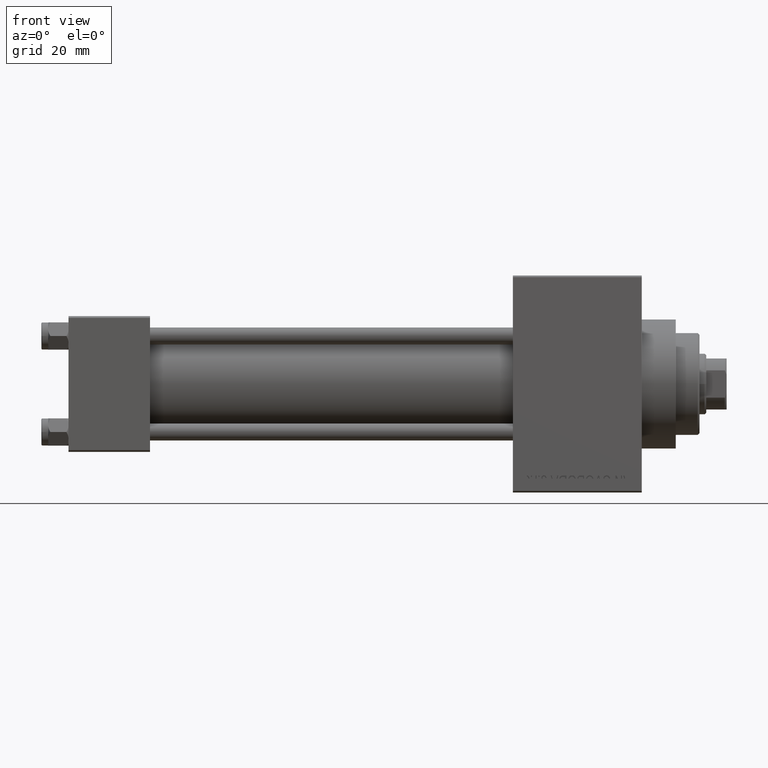
[diagram: clean part render]
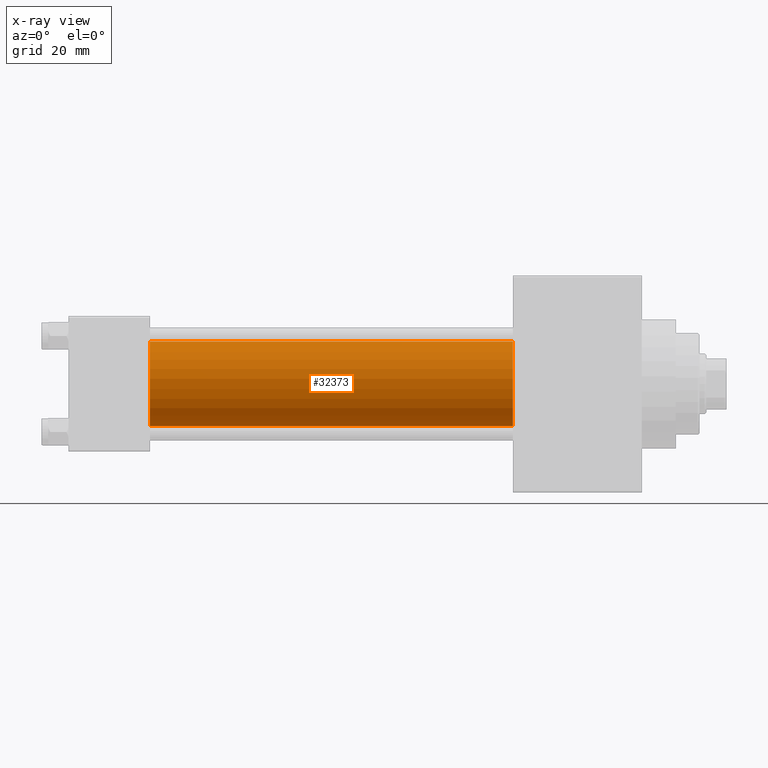
[diagram: x-ray — body ghosted, one internal face saturated and labeled with its STEP entity id]
A machine part, front view, then the same camera in x-ray: the body is ghosted and one INTERNAL B-rep face — a face not visible from any outside direction — is saturated and labeled: STEP entity #32373.
In plain terms, the highlighted cylindrical surface (partial cylindrical patch) has radius 12.5 mm, axis along (-1, -0, -0).
Its self-contained STEP definition (entity closure, byte-faithful):
#2837 = EDGE_CURVE ( 'NONE', #19788, #11742, #44883, .T. ) ;
#3006 = CARTESIAN_POINT ( 'NONE',  ( 24.00000000000000000, -2.602085213965210642E-15, 12.49999999999999645 ) ) ;
#5378 = CARTESIAN_POINT ( 'NONE',  ( 131.0000000000000000, -1.071276715031019515E-15, -12.49999999999999645 ) ) ;
#7848 = VECTOR ( 'NONE', #16878, 1000.000000000000000 ) ;
#8693 = EDGE_CURVE ( 'NONE', #27820, #11742, #20434, .T. ) ;
#8787 = DIRECTION ( 'NONE',  ( -1.000000000000000000, -0.000000000000000000, -0.000000000000000000 ) ) ;
#9394 = DIRECTION ( 'NONE',  ( 0.000000000000000000, 0.000000000000000000, -1.000000000000000000 ) ) ;
#10233 = FACE_OUTER_BOUND ( 'NONE', #22007, .T. ) ;
#10463 = ORIENTED_EDGE ( 'NONE', *, *, #31359, .F. ) ;
#11742 = VERTEX_POINT ( 'NONE', #42885 ) ;
#12129 = LINE ( 'NONE', #18792, #34762 ) ;
#13582 = ORIENTED_EDGE ( 'NONE', *, *, #2837, .F. ) ;
#13801 = DIRECTION ( 'NONE',  ( 0.000000000000000000, 0.000000000000000000, 1.000000000000000000 ) ) ;
#14122 = DIRECTION ( 'NONE',  ( 0.000000000000000000, 0.000000000000000000, -1.000000000000000000 ) ) ;
#16878 = DIRECTION ( 'NONE',  ( -1.000000000000000000, -0.000000000000000000, -0.000000000000000000 ) ) ;
#17225 = DIRECTION ( 'NONE',  ( 1.000000000000000000, 0.000000000000000000, 0.000000000000000000 ) ) ;
#17228 = DIRECTION ( 'NONE',  ( 1.000000000000000000, 0.000000000000000000, 0.000000000000000000 ) ) ;
#18792 = CARTESIAN_POINT ( 'NONE',  ( 131.0000000000000000, -2.602085213965210642E-15, 12.49999999999999645 ) ) ;
#19788 = VERTEX_POINT ( 'NONE', #3006 ) ;
#20434 = LINE ( 'NONE', #42557, #7848 ) ;
#20470 = CARTESIAN_POINT ( 'NONE',  ( 131.0000000000000000, -2.602085213965210642E-15, 0.000000000000000000 ) ) ;
#20932 = DIRECTION ( 'NONE',  ( -1.000000000000000000, -0.000000000000000000, -0.000000000000000000 ) ) ;
#22007 = EDGE_LOOP ( 'NONE', ( #24511, #28492, #13582, #10463 ) ) ;
#24328 = AXIS2_PLACEMENT_3D ( 'NONE', #24351, #17225, #9394 ) ;
#24351 = CARTESIAN_POINT ( 'NONE',  ( 24.00000000000000000, -2.602085213965210642E-15, 0.000000000000000000 ) ) ;
#24511 = ORIENTED_EDGE ( 'NONE', *, *, #41880, .T. ) ;
#27038 = VERTEX_POINT ( 'NONE', #46935 ) ;
#27820 = VERTEX_POINT ( 'NONE', #5378 ) ;
#28492 = ORIENTED_EDGE ( 'NONE', *, *, #8693, .T. ) ;
#30197 = AXIS2_PLACEMENT_3D ( 'NONE', #20470, #20932, #13801 ) ;
#31236 = CIRCLE ( 'NONE', #35054, 12.49999999999999645 ) ;
#31359 = EDGE_CURVE ( 'NONE', #27038, #19788, #12129, .T. ) ;
#32203 = CARTESIAN_POINT ( 'NONE',  ( 131.0000000000000000, -2.602085213965210642E-15, 0.000000000000000000 ) ) ;
#32373 = ADVANCED_FACE ( 'NONE', ( #10233 ), #46637, .F. ) ;
#34762 = VECTOR ( 'NONE', #8787, 1000.000000000000000 ) ;
#35054 = AXIS2_PLACEMENT_3D ( 'NONE', #32203, #17228, #14122 ) ;
#41880 = EDGE_CURVE ( 'NONE', #27038, #27820, #31236, .T. ) ;
#42557 = CARTESIAN_POINT ( 'NONE',  ( 131.0000000000000000, -1.071276715031019515E-15, -12.49999999999999645 ) ) ;
#42885 = CARTESIAN_POINT ( 'NONE',  ( 24.00000000000000000, -1.071276715031019515E-15, -12.49999999999999645 ) ) ;
#44883 = CIRCLE ( 'NONE', #24328, 12.49999999999999645 ) ;
#46637 = CYLINDRICAL_SURFACE ( 'NONE', #30197, 12.49999999999999645 ) ;
#46935 = CARTESIAN_POINT ( 'NONE',  ( 131.0000000000000000, -2.602085213965210642E-15, 12.49999999999999645 ) ) ;